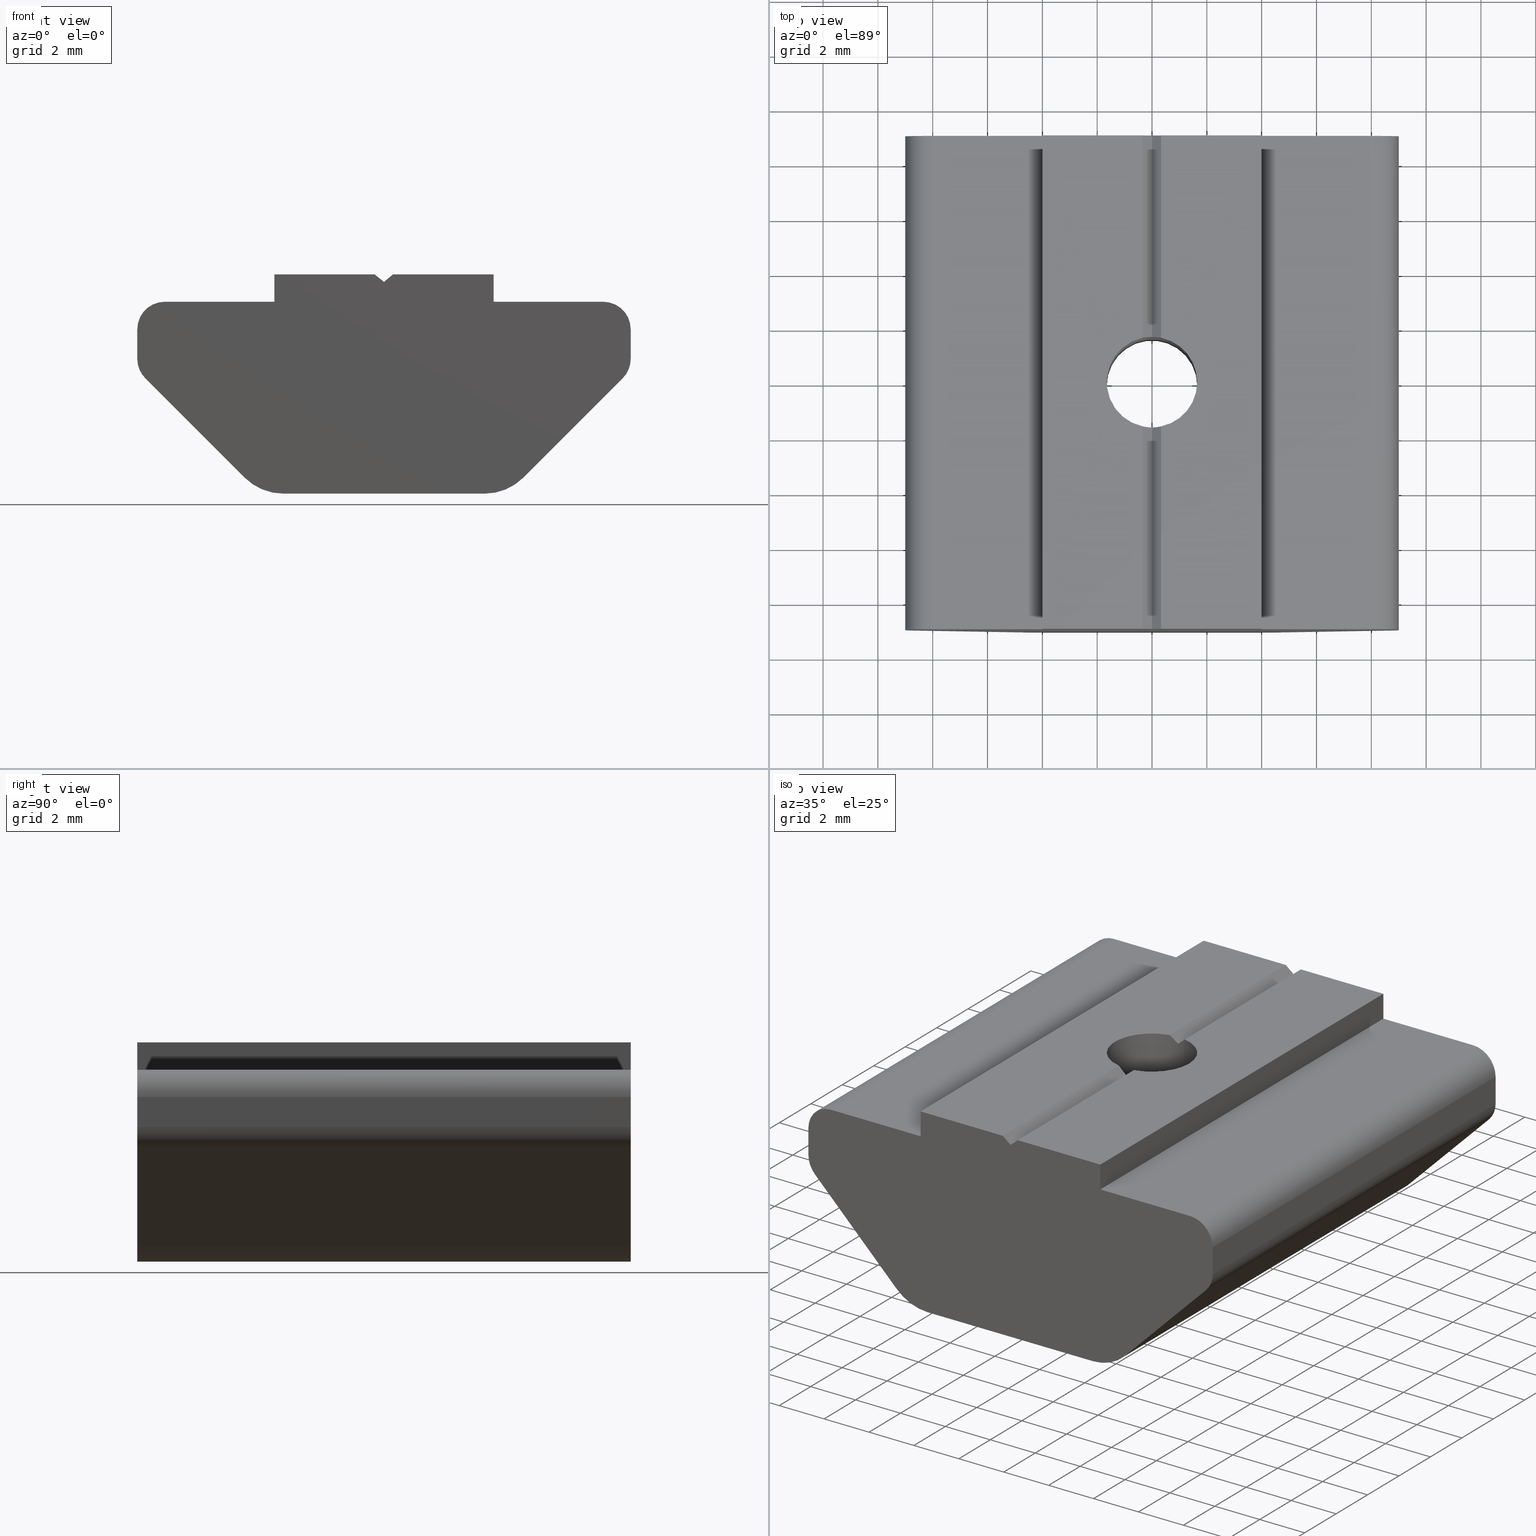
[diagram: canonical four-view strip — front | top / right | iso, engineering-drawing reading convention]
A machine part, canonical four-view strip (front | top / right | iso — engineering-drawing reading convention). The complete STEP part file that produces these views, byte-faithful:
ISO-10303-21;
HEADER;
/****************************************************************
 * Generated by software with PDE/Lib inside                    *
 * PDElib Version v4.4, created Mon 02/23/2004                  *
 * International Technegroup Inc. (www.iti-oh.com)              *
 ****************************************************************/
FILE_DESCRIPTION(('STEP AP203'),'2;1');
FILE_NAME('26.027.00.stp','2011-03-21T16:16:51',(''),(''),'2009.3.110','THINKDESIGN','');
FILE_SCHEMA(('CONFIG_CONTROL_DESIGN'));
ENDSEC;
DATA;
#2=CARTESIAN_POINT('',(-3.999999103984351,9.0,6.999998456000070));
#3=DIRECTION('',(0.0,0.0,1.0));
#4=DIRECTION('',(-1.0,0.0,0.0));
#5=AXIS2_PLACEMENT_3D('',#2,#3,#4);
#6=PLANE('',#5);
#7=CARTESIAN_POINT('',(-3.999999103984351,9.0,6.999998456000070));
#8=VERTEX_POINT('',#7);
#9=CARTESIAN_POINT('',(-7.999998220035479,9.0,6.999998455999957));
#10=VERTEX_POINT('',#9);
#11=CARTESIAN_POINT('',(-3.999999103984351,9.0,6.999998456000070));
#12=DIRECTION('',(-1.0,0.0,0.0));
#13=VECTOR('',#12,3.999999116051129);
#14=LINE('',#11,#13);
#15=EDGE_CURVE('',#8,#10,#14,.T.);
#16=ORIENTED_EDGE('',*,*,#15,.T.);
#17=CARTESIAN_POINT('',(-7.999998220035479,-9.0,6.999998455999958));
#18=VERTEX_POINT('',#17);
#19=CARTESIAN_POINT('',(-7.999998220035479,9.0,6.999998455999957));
#20=DIRECTION('',(0.0,-1.0,0.0));
#21=VECTOR('',#20,18.0);
#22=LINE('',#19,#21);
#23=EDGE_CURVE('',#10,#18,#22,.T.);
#24=ORIENTED_EDGE('',*,*,#23,.T.);
#25=CARTESIAN_POINT('',(-3.999999103984351,-9.0,6.999998456000072));
#26=VERTEX_POINT('',#25);
#27=CARTESIAN_POINT('',(-3.999999103984351,-9.0,6.999998456000072));
#28=DIRECTION('',(-1.0,0.0,0.0));
#29=VECTOR('',#28,3.999999116051129);
#30=LINE('',#27,#29);
#31=EDGE_CURVE('',#26,#18,#30,.T.);
#32=ORIENTED_EDGE('',*,*,#31,.F.);
#33=CARTESIAN_POINT('',(-3.999999103984351,9.0,6.999998456000070));
#34=DIRECTION('',(0.0,-1.0,0.0));
#35=VECTOR('',#34,18.0);
#36=LINE('',#33,#35);
#37=EDGE_CURVE('',#8,#26,#36,.T.);
#38=ORIENTED_EDGE('',*,*,#37,.F.);
#39=EDGE_LOOP('',(#16,#24,#32,#38));
#40=FACE_OUTER_BOUND('',#39,.T.);
#41=ADVANCED_FACE('',(#40),#6,.T.);
#42=CARTESIAN_POINT('',(-7.999998211933246,9.0,5.999998673948880));
#43=DIRECTION('',(0.0,-1.0,6.123234E-017));
#44=DIRECTION('',(1.0,0.0,0.0));
#45=AXIS2_PLACEMENT_3D('',#42,#43,#44);
#46=CYLINDRICAL_SURFACE('',#45,0.999999782051095);
#47=CARTESIAN_POINT('',(-8.999997993984323,9.0,5.999998677999996));
#48=VERTEX_POINT('',#47);
#49=CARTESIAN_POINT('',(-7.999998211933246,9.0,5.999998673948880));
#50=DIRECTION('',(0.0,-1.0,6.123234E-017));
#51=DIRECTION('',(1.0,0.0,0.0));
#52=AXIS2_PLACEMENT_3D('',#49,#50,#51);
#53=CIRCLE('',#52,0.999999782051095);
#54=EDGE_CURVE('',#10,#48,#53,.T.);
#55=ORIENTED_EDGE('',*,*,#54,.T.);
#56=CARTESIAN_POINT('',(-8.999997993984323,-9.0,5.999998677999998));
#57=VERTEX_POINT('',#56);
#58=CARTESIAN_POINT('',(-8.999997993984323,9.0,5.999998677999996));
#59=DIRECTION('',(0.0,-1.0,0.0));
#60=VECTOR('',#59,18.0);
#61=LINE('',#58,#60);
#62=EDGE_CURVE('',#48,#57,#61,.T.);
#63=ORIENTED_EDGE('',*,*,#62,.T.);
#64=CARTESIAN_POINT('',(-7.999998211933246,-9.0,5.999998673948881));
#65=DIRECTION('',(0.0,-1.0,6.123234E-017));
#66=DIRECTION('',(1.0,0.0,0.0));
#67=AXIS2_PLACEMENT_3D('',#64,#65,#66);
#68=CIRCLE('',#67,0.999999782051095);
#69=EDGE_CURVE('',#18,#57,#68,.T.);
#70=ORIENTED_EDGE('',*,*,#69,.F.);
#71=ORIENTED_EDGE('',*,*,#23,.F.);
#72=EDGE_LOOP('',(#55,#63,#70,#71));
#73=FACE_OUTER_BOUND('',#72,.T.);
#74=ADVANCED_FACE('',(#73),#46,.T.);
#75=CARTESIAN_POINT('',(-8.999997993984323,9.0,5.999998677999996));
#76=DIRECTION('',(-1.0,0.0,0.0));
#77=DIRECTION('',(0.0,0.0,-1.0));
#78=AXIS2_PLACEMENT_3D('',#75,#76,#77);
#79=PLANE('',#78);
#80=CARTESIAN_POINT('',(-8.999997993984351,9.0,4.914212479044635));
#81=VERTEX_POINT('',#80);
#82=CARTESIAN_POINT('',(-8.999997993984337,9.0,5.999998677999996));
#83=DIRECTION('',(0.0,0.0,-1.0));
#84=VECTOR('',#83,1.085786198955361);
#85=LINE('',#82,#84);
#86=EDGE_CURVE('',#48,#81,#85,.T.);
#87=ORIENTED_EDGE('',*,*,#86,.T.);
#88=CARTESIAN_POINT('',(-8.999997993984351,-9.0,4.914212479044637));
#89=VERTEX_POINT('',#88);
#90=CARTESIAN_POINT('',(-8.999997993984351,9.0,4.914212479044635));
#91=DIRECTION('',(0.0,-1.0,0.0));
#92=VECTOR('',#91,18.0);
#93=LINE('',#90,#92);
#94=EDGE_CURVE('',#81,#89,#93,.T.);
#95=ORIENTED_EDGE('',*,*,#94,.T.);
#96=CARTESIAN_POINT('',(-8.999997993984337,-9.0,5.999998677999998));
#97=DIRECTION('',(0.0,0.0,-1.0));
#98=VECTOR('',#97,1.085786198955361);
#99=LINE('',#96,#98);
#100=EDGE_CURVE('',#57,#89,#99,.T.);
#101=ORIENTED_EDGE('',*,*,#100,.F.);
#102=ORIENTED_EDGE('',*,*,#62,.F.);
#103=EDGE_LOOP('',(#87,#95,#101,#102));
#104=FACE_OUTER_BOUND('',#103,.T.);
#105=ADVANCED_FACE('',(#104),#79,.T.);
#106=CARTESIAN_POINT('',(-7.999998228993803,9.0,4.914212476028978));
#107=DIRECTION('',(0.0,-1.0,6.123234E-017));
#108=DIRECTION('',(1.0,0.0,0.0));
#109=AXIS2_PLACEMENT_3D('',#106,#107,#108);
#110=CYLINDRICAL_SURFACE('',#109,0.999999764990546);
#111=CARTESIAN_POINT('',(-8.707104839006661,9.0,4.207105856022280));
#112=VERTEX_POINT('',#111);
#113=CARTESIAN_POINT('',(-7.999998228993803,9.0,4.914212476028978));
#114=DIRECTION('',(0.0,-1.0,6.123234E-017));
#115=DIRECTION('',(1.0,0.0,0.0));
#116=AXIS2_PLACEMENT_3D('',#113,#114,#115);
#117=CIRCLE('',#116,0.999999764990546);
#118=EDGE_CURVE('',#81,#112,#117,.T.);
#119=ORIENTED_EDGE('',*,*,#118,.T.);
#120=CARTESIAN_POINT('',(-8.707104839006661,-9.0,4.207105856022282));
#121=VERTEX_POINT('',#120);
#122=CARTESIAN_POINT('',(-8.707104839006661,9.0,4.207105856022280));
#123=DIRECTION('',(0.0,-1.0,0.0));
#124=VECTOR('',#123,18.0);
#125=LINE('',#122,#124);
#126=EDGE_CURVE('',#112,#121,#125,.T.);
#127=ORIENTED_EDGE('',*,*,#126,.T.);
#128=CARTESIAN_POINT('',(-7.999998228993803,-9.0,4.914212476028980));
#129=DIRECTION('',(0.0,-1.0,6.123234E-017));
#130=DIRECTION('',(1.0,0.0,0.0));
#131=AXIS2_PLACEMENT_3D('',#128,#129,#130);
#132=CIRCLE('',#131,0.999999764990546);
#133=EDGE_CURVE('',#89,#121,#132,.T.);
#134=ORIENTED_EDGE('',*,*,#133,.F.);
#135=ORIENTED_EDGE('',*,*,#94,.F.);
#136=EDGE_LOOP('',(#119,#127,#134,#135));
#137=FACE_OUTER_BOUND('',#136,.T.);
#138=ADVANCED_FACE('',(#137),#110,.T.);
#139=CARTESIAN_POINT('',(-8.707104839006661,9.0,4.207105856022280));
#140=DIRECTION('',(-0.707106782162851,-4.329780E-017,-0.707106780210244));
#141=DIRECTION('',(0.707106780210244,-4.329780E-017,-0.707106782162851));
#142=AXIS2_PLACEMENT_3D('',#139,#140,#141);
#143=PLANE('',#142);
#144=CARTESIAN_POINT('',(-5.085785302939740,9.0,0.585786309955437));
#145=VERTEX_POINT('',#144);
#146=CARTESIAN_POINT('',(-8.707104839006661,9.0,4.207105856022281));
#147=DIRECTION('',(0.707106780210244,0.0,-0.707106782162851));
#148=VECTOR('',#147,5.121319208663497);
#149=LINE('',#146,#148);
#150=EDGE_CURVE('',#112,#145,#149,.T.);
#151=ORIENTED_EDGE('',*,*,#150,.T.);
#152=CARTESIAN_POINT('',(-5.085785302939740,-9.0,0.585786309955438));
#153=VERTEX_POINT('',#152);
#154=CARTESIAN_POINT('',(-5.085785302939740,9.0,0.585786309955437));
#155=DIRECTION('',(0.0,-1.0,0.0));
#156=VECTOR('',#155,18.0);
#157=LINE('',#154,#156);
#158=EDGE_CURVE('',#145,#153,#157,.T.);
#159=ORIENTED_EDGE('',*,*,#158,.T.);
#160=CARTESIAN_POINT('',(-8.707104839006661,-9.0,4.207105856022282));
#161=DIRECTION('',(0.707106780210244,0.0,-0.707106782162851));
#162=VECTOR('',#161,5.121319208663497);
#163=LINE('',#160,#162);
#164=EDGE_CURVE('',#121,#153,#163,.T.);
#165=ORIENTED_EDGE('',*,*,#164,.F.);
#166=ORIENTED_EDGE('',*,*,#126,.F.);
#167=EDGE_LOOP('',(#151,#159,#165,#166));
#168=FACE_OUTER_BOUND('',#167,.T.);
#169=ADVANCED_FACE('',(#168),#143,.T.);
#170=CARTESIAN_POINT('',(-3.671572062926458,9.0,1.999999529980755));
#171=DIRECTION('',(0.0,-1.0,6.123234E-017));
#172=DIRECTION('',(1.0,0.0,0.0));
#173=AXIS2_PLACEMENT_3D('',#170,#171,#172);
#174=CYLINDRICAL_SURFACE('',#173,1.999999529980764);
#175=CARTESIAN_POINT('',(-3.671572062926487,9.0,-5.510911E-016));
#176=VERTEX_POINT('',#175);
#177=CARTESIAN_POINT('',(-3.671572062926458,9.0,1.999999529980755));
#178=DIRECTION('',(0.0,-1.0,6.123234E-017));
#179=DIRECTION('',(1.0,0.0,0.0));
#180=AXIS2_PLACEMENT_3D('',#177,#178,#179);
#181=CIRCLE('',#180,1.999999529980764);
#182=EDGE_CURVE('',#145,#176,#181,.T.);
#183=ORIENTED_EDGE('',*,*,#182,.T.);
#184=CARTESIAN_POINT('',(-3.671572062926487,-9.0,5.510911E-016));
#185=VERTEX_POINT('',#184);
#186=CARTESIAN_POINT('',(-3.671572062926487,9.0,-5.510911E-016));
#187=DIRECTION('',(0.0,-1.0,0.0));
#188=VECTOR('',#187,18.0);
#189=LINE('',#186,#188);
#190=EDGE_CURVE('',#176,#185,#189,.T.);
#191=ORIENTED_EDGE('',*,*,#190,.T.);
#192=CARTESIAN_POINT('',(-3.671572062926458,-9.0,1.999999529980756));
#193=DIRECTION('',(0.0,-1.0,6.123234E-017));
#194=DIRECTION('',(1.0,0.0,0.0));
#195=AXIS2_PLACEMENT_3D('',#192,#193,#194);
#196=CIRCLE('',#195,1.999999529980764);
#197=EDGE_CURVE('',#153,#185,#196,.T.);
#198=ORIENTED_EDGE('',*,*,#197,.F.);
#199=ORIENTED_EDGE('',*,*,#158,.F.);
#200=EDGE_LOOP('',(#183,#191,#198,#199));
#201=FACE_OUTER_BOUND('',#200,.T.);
#202=ADVANCED_FACE('',(#201),#174,.T.);
#203=CARTESIAN_POINT('',(-3.671572062926487,9.0,-5.510911E-016));
#204=DIRECTION('',(0.0,0.0,-1.0));
#205=DIRECTION('',(1.0,0.0,0.0));
#206=AXIS2_PLACEMENT_3D('',#203,#204,#205);
#207=PLANE('',#206);
#208=CARTESIAN_POINT('',(3.671572062926487,9.0,-5.510911E-016));
#209=VERTEX_POINT('',#208);
#210=CARTESIAN_POINT('',(-3.671572062926472,9.0,-5.510911E-016));
#211=DIRECTION('',(1.0,0.0,0.0));
#212=VECTOR('',#211,7.343144125852959);
#213=LINE('',#210,#212);
#214=EDGE_CURVE('',#176,#209,#213,.T.);
#215=ORIENTED_EDGE('',*,*,#214,.T.);
#216=CARTESIAN_POINT('',(3.671572062926487,-9.0,5.510911E-016));
#217=VERTEX_POINT('',#216);
#218=CARTESIAN_POINT('',(3.671572062926487,9.0,-5.510911E-016));
#219=DIRECTION('',(0.0,-1.0,0.0));
#220=VECTOR('',#219,18.0);
#221=LINE('',#218,#220);
#222=EDGE_CURVE('',#209,#217,#221,.T.);
#223=ORIENTED_EDGE('',*,*,#222,.T.);
#224=CARTESIAN_POINT('',(-3.671572062926472,-9.0,5.510911E-016));
#225=DIRECTION('',(1.0,0.0,0.0));
#226=VECTOR('',#225,7.343144125852959);
#227=LINE('',#224,#226);
#228=EDGE_CURVE('',#185,#217,#227,.T.);
#229=ORIENTED_EDGE('',*,*,#228,.F.);
#230=ORIENTED_EDGE('',*,*,#190,.F.);
#231=EDGE_LOOP('',(#215,#223,#229,#230));
#232=FACE_OUTER_BOUND('',#231,.T.);
#233=CARTESIAN_POINT('',(-1.650000000000000,0.0,0.0));
#234=VERTEX_POINT('',#233);
#235=CARTESIAN_POINT('',(1.650000000000006,0.0,0.0));
#236=VERTEX_POINT('',#235);
#237=CARTESIAN_POINT('',(0.0,0.0,0.0));
#238=DIRECTION('',(0.0,-6.123234E-017,-1.0));
#239=DIRECTION('',(1.0,0.0,0.0));
#240=AXIS2_PLACEMENT_3D('',#237,#238,#239);
#241=CIRCLE('',#240,1.650000000000000);
#242=EDGE_CURVE('',#234,#236,#241,.T.);
#243=ORIENTED_EDGE('',*,*,#242,.F.);
#244=CARTESIAN_POINT('',(0.0,0.0,0.0));
#245=DIRECTION('',(0.0,-6.123234E-017,-1.0));
#246=DIRECTION('',(1.0,0.0,0.0));
#247=AXIS2_PLACEMENT_3D('',#244,#245,#246);
#248=CIRCLE('',#247,1.650000000000000);
#249=EDGE_CURVE('',#236,#234,#248,.T.);
#250=ORIENTED_EDGE('',*,*,#249,.F.);
#251=EDGE_LOOP('',(#243,#250));
#252=FACE_BOUND('',#251,.T.);
#253=ADVANCED_FACE('',(#232,#252),#207,.T.);
#254=CARTESIAN_POINT('',(3.671572068957801,9.0,1.999999529980755));
#255=DIRECTION('',(0.0,-1.0,6.123234E-017));
#256=DIRECTION('',(1.0,0.0,0.0));
#257=AXIS2_PLACEMENT_3D('',#254,#255,#256);
#258=CYLINDRICAL_SURFACE('',#257,1.999999529980788);
#259=CARTESIAN_POINT('',(5.085785308971083,9.0,0.585786309955437));
#260=VERTEX_POINT('',#259);
#261=CARTESIAN_POINT('',(3.671572068957801,9.0,1.999999529980755));
#262=DIRECTION('',(0.0,-1.0,6.123234E-017));
#263=DIRECTION('',(1.0,0.0,0.0));
#264=AXIS2_PLACEMENT_3D('',#261,#262,#263);
#265=CIRCLE('',#264,1.999999529980788);
#266=EDGE_CURVE('',#209,#260,#265,.T.);
#267=ORIENTED_EDGE('',*,*,#266,.T.);
#268=CARTESIAN_POINT('',(5.085785308971083,-9.0,0.585786309955438));
#269=VERTEX_POINT('',#268);
#270=CARTESIAN_POINT('',(5.085785308971083,9.0,0.585786309955437));
#271=DIRECTION('',(0.0,-1.0,0.0));
#272=VECTOR('',#271,18.0);
#273=LINE('',#270,#272);
#274=EDGE_CURVE('',#260,#269,#273,.T.);
#275=ORIENTED_EDGE('',*,*,#274,.T.);
#276=CARTESIAN_POINT('',(3.671572068957801,-9.0,1.999999529980756));
#277=DIRECTION('',(0.0,-1.0,6.123234E-017));
#278=DIRECTION('',(1.0,0.0,0.0));
#279=AXIS2_PLACEMENT_3D('',#276,#277,#278);
#280=CIRCLE('',#279,1.999999529980788);
#281=EDGE_CURVE('',#217,#269,#280,.T.);
#282=ORIENTED_EDGE('',*,*,#281,.F.);
#283=ORIENTED_EDGE('',*,*,#222,.F.);
#284=EDGE_LOOP('',(#267,#275,#282,#283));
#285=FACE_OUTER_BOUND('',#284,.T.);
#286=ADVANCED_FACE('',(#285),#258,.T.);
#287=CARTESIAN_POINT('',(5.085785308971083,9.0,0.585786309955437));
#288=DIRECTION('',(0.707106781186546,-4.329780E-017,-0.707106781186549));
#289=DIRECTION('',(0.707106781186549,4.329780E-017,0.707106781186546));
#290=AXIS2_PLACEMENT_3D('',#287,#288,#289);
#291=PLANE('',#290);
#292=CARTESIAN_POINT('',(8.707104855037954,9.0,4.207105856022280));
#293=VERTEX_POINT('',#292);
#294=CARTESIAN_POINT('',(5.085785308971097,9.0,0.585786309955437));
#295=DIRECTION('',(0.707106781186549,0.0,0.707106781186546));
#296=VECTOR('',#295,5.121319215734520);
#297=LINE('',#294,#296);
#298=EDGE_CURVE('',#260,#293,#297,.T.);
#299=ORIENTED_EDGE('',*,*,#298,.T.);
#300=CARTESIAN_POINT('',(8.707104855037954,-9.0,4.207105856022282));
#301=VERTEX_POINT('',#300);
#302=CARTESIAN_POINT('',(8.707104855037954,9.0,4.207105856022280));
#303=DIRECTION('',(0.0,-1.0,0.0));
#304=VECTOR('',#303,18.0);
#305=LINE('',#302,#304);
#306=EDGE_CURVE('',#293,#301,#305,.T.);
#307=ORIENTED_EDGE('',*,*,#306,.T.);
#308=CARTESIAN_POINT('',(5.085785308971097,-9.0,0.585786309955439));
#309=DIRECTION('',(0.707106781186549,0.0,0.707106781186546));
#310=VECTOR('',#309,5.121319215734520);
#311=LINE('',#308,#310);
#312=EDGE_CURVE('',#269,#301,#311,.T.);
#313=ORIENTED_EDGE('',*,*,#312,.F.);
#314=ORIENTED_EDGE('',*,*,#274,.F.);
#315=EDGE_LOOP('',(#299,#307,#313,#314));
#316=FACE_OUTER_BOUND('',#315,.T.);
#317=ADVANCED_FACE('',(#316),#291,.T.);
#318=CARTESIAN_POINT('',(7.999998245025154,9.0,4.914212476028978));
#319=DIRECTION('',(0.0,-1.0,6.123234E-017));
#320=DIRECTION('',(1.0,0.0,0.0));
#321=AXIS2_PLACEMENT_3D('',#318,#319,#320);
#322=CYLINDRICAL_SURFACE('',#321,0.999999764990531);
#323=CARTESIAN_POINT('',(8.999998010015673,9.0,4.914212476028978));
#324=VERTEX_POINT('',#323);
#325=CARTESIAN_POINT('',(7.999998245025154,9.0,4.914212476028978));
#326=DIRECTION('',(0.0,-1.0,6.123234E-017));
#327=DIRECTION('',(1.0,0.0,0.0));
#328=AXIS2_PLACEMENT_3D('',#325,#326,#327);
#329=CIRCLE('',#328,0.999999764990531);
#330=EDGE_CURVE('',#293,#324,#329,.T.);
#331=ORIENTED_EDGE('',*,*,#330,.T.);
#332=CARTESIAN_POINT('',(8.999998010015673,-9.0,4.914212476028980));
#333=VERTEX_POINT('',#332);
#334=CARTESIAN_POINT('',(8.999998010015673,9.0,4.914212476028978));
#335=DIRECTION('',(0.0,-1.0,0.0));
#336=VECTOR('',#335,18.0);
#337=LINE('',#334,#336);
#338=EDGE_CURVE('',#324,#333,#337,.T.);
#339=ORIENTED_EDGE('',*,*,#338,.T.);
#340=CARTESIAN_POINT('',(7.999998245025154,-9.0,4.914212476028980));
#341=DIRECTION('',(0.0,-1.0,6.123234E-017));
#342=DIRECTION('',(1.0,0.0,0.0));
#343=AXIS2_PLACEMENT_3D('',#340,#341,#342);
#344=CIRCLE('',#343,0.999999764990531);
#345=EDGE_CURVE('',#301,#333,#344,.T.);
#346=ORIENTED_EDGE('',*,*,#345,.F.);
#347=ORIENTED_EDGE('',*,*,#306,.F.);
#348=EDGE_LOOP('',(#331,#339,#346,#347));
#349=FACE_OUTER_BOUND('',#348,.T.);
#350=ADVANCED_FACE('',(#349),#322,.T.);
#351=CARTESIAN_POINT('',(8.999998010015673,9.0,4.914212476028978));
#352=DIRECTION('',(1.0,0.0,0.0));
#353=DIRECTION('',(0.0,0.0,1.0));
#354=AXIS2_PLACEMENT_3D('',#351,#352,#353);
#355=PLANE('',#354);
#356=CARTESIAN_POINT('',(8.999998010015673,9.0,5.999998677999996));
#357=VERTEX_POINT('',#356);
#358=CARTESIAN_POINT('',(8.999998010015673,9.0,4.914212476028978));
#359=DIRECTION('',(0.0,0.0,1.0));
#360=VECTOR('',#359,1.085786201971018);
#361=LINE('',#358,#360);
#362=EDGE_CURVE('',#324,#357,#361,.T.);
#363=ORIENTED_EDGE('',*,*,#362,.T.);
#364=CARTESIAN_POINT('',(8.999998010015673,-9.0,5.999998677999998));
#365=VERTEX_POINT('',#364);
#366=CARTESIAN_POINT('',(8.999998010015673,9.0,5.999998677999996));
#367=DIRECTION('',(0.0,-1.0,0.0));
#368=VECTOR('',#367,18.0);
#369=LINE('',#366,#368);
#370=EDGE_CURVE('',#357,#365,#369,.T.);
#371=ORIENTED_EDGE('',*,*,#370,.T.);
#372=CARTESIAN_POINT('',(8.999998010015673,-9.0,4.914212476028980));
#373=DIRECTION('',(0.0,0.0,1.0));
#374=VECTOR('',#373,1.085786201971018);
#375=LINE('',#372,#374);
#376=EDGE_CURVE('',#333,#365,#375,.T.);
#377=ORIENTED_EDGE('',*,*,#376,.F.);
#378=ORIENTED_EDGE('',*,*,#338,.F.);
#379=EDGE_LOOP('',(#363,#371,#377,#378));
#380=FACE_OUTER_BOUND('',#379,.T.);
#381=ADVANCED_FACE('',(#380),#355,.T.);
#382=CARTESIAN_POINT('',(7.999998227964539,9.0,5.999998673948880));
#383=DIRECTION('',(0.0,-1.0,6.123234E-017));
#384=DIRECTION('',(1.0,0.0,0.0));
#385=AXIS2_PLACEMENT_3D('',#382,#383,#384);
#386=CYLINDRICAL_SURFACE('',#385,0.999999782051127);
#387=CARTESIAN_POINT('',(7.999998227964511,9.0,6.999998455999957));
#388=VERTEX_POINT('',#387);
#389=CARTESIAN_POINT('',(7.999998227964539,9.0,5.999998673948880));
#390=DIRECTION('',(0.0,-1.0,6.123234E-017));
#391=DIRECTION('',(1.0,0.0,0.0));
#392=AXIS2_PLACEMENT_3D('',#389,#390,#391);
#393=CIRCLE('',#392,0.999999782051127);
#394=EDGE_CURVE('',#357,#388,#393,.T.);
#395=ORIENTED_EDGE('',*,*,#394,.T.);
#396=CARTESIAN_POINT('',(7.999998227964511,-9.0,6.999998455999958));
#397=VERTEX_POINT('',#396);
#398=CARTESIAN_POINT('',(7.999998227964511,9.0,6.999998455999957));
#399=DIRECTION('',(0.0,-1.0,0.0));
#400=VECTOR('',#399,18.0);
#401=LINE('',#398,#400);
#402=EDGE_CURVE('',#388,#397,#401,.T.);
#403=ORIENTED_EDGE('',*,*,#402,.T.);
#404=CARTESIAN_POINT('',(7.999998227964539,-9.0,5.999998673948881));
#405=DIRECTION('',(0.0,-1.0,6.123234E-017));
#406=DIRECTION('',(1.0,0.0,0.0));
#407=AXIS2_PLACEMENT_3D('',#404,#405,#406);
#408=CIRCLE('',#407,0.999999782051127);
#409=EDGE_CURVE('',#365,#397,#408,.T.);
#410=ORIENTED_EDGE('',*,*,#409,.F.);
#411=ORIENTED_EDGE('',*,*,#370,.F.);
#412=EDGE_LOOP('',(#395,#403,#410,#411));
#413=FACE_OUTER_BOUND('',#412,.T.);
#414=ADVANCED_FACE('',(#413),#386,.T.);
#415=CARTESIAN_POINT('',(7.999998227964511,9.0,6.999998455999957));
#416=DIRECTION('',(0.0,0.0,1.0));
#417=DIRECTION('',(-1.0,0.0,0.0));
#418=AXIS2_PLACEMENT_3D('',#415,#416,#417);
#419=PLANE('',#418);
#420=CARTESIAN_POINT('',(3.999999120015673,9.0,6.999998455999957));
#421=VERTEX_POINT('',#420);
#422=CARTESIAN_POINT('',(7.999998227964539,9.0,6.999998455999957));
#423=DIRECTION('',(-1.0,0.0,0.0));
#424=VECTOR('',#423,3.999999107948867);
#425=LINE('',#422,#424);
#426=EDGE_CURVE('',#388,#421,#425,.T.);
#427=ORIENTED_EDGE('',*,*,#426,.T.);
#428=CARTESIAN_POINT('',(3.999999120015673,-9.0,6.999998455999958));
#429=VERTEX_POINT('',#428);
#430=CARTESIAN_POINT('',(3.999999120015673,9.0,6.999998455999957));
#431=DIRECTION('',(0.0,-1.0,0.0));
#432=VECTOR('',#431,18.0);
#433=LINE('',#430,#432);
#434=EDGE_CURVE('',#421,#429,#433,.T.);
#435=ORIENTED_EDGE('',*,*,#434,.T.);
#436=CARTESIAN_POINT('',(7.999998227964539,-9.0,6.999998455999958));
#437=DIRECTION('',(-1.0,0.0,0.0));
#438=VECTOR('',#437,3.999999107948867);
#439=LINE('',#436,#438);
#440=EDGE_CURVE('',#397,#429,#439,.T.);
#441=ORIENTED_EDGE('',*,*,#440,.F.);
#442=ORIENTED_EDGE('',*,*,#402,.F.);
#443=EDGE_LOOP('',(#427,#435,#441,#442));
#444=FACE_OUTER_BOUND('',#443,.T.);
#445=ADVANCED_FACE('',(#444),#419,.T.);
#446=CARTESIAN_POINT('',(3.999999120015673,9.0,6.999998455999957));
#447=DIRECTION('',(1.0,0.0,0.0));
#448=DIRECTION('',(0.0,0.0,1.0));
#449=AXIS2_PLACEMENT_3D('',#446,#447,#448);
#450=PLANE('',#449);
#451=CARTESIAN_POINT('',(3.999999120015673,9.0,7.999998234000031));
#452=VERTEX_POINT('',#451);
#453=CARTESIAN_POINT('',(3.999999120015673,9.0,6.999998455999957));
#454=DIRECTION('',(0.0,0.0,1.0));
#455=VECTOR('',#454,0.999999778000074);
#456=LINE('',#453,#455);
#457=EDGE_CURVE('',#421,#452,#456,.T.);
#458=ORIENTED_EDGE('',*,*,#457,.T.);
#459=CARTESIAN_POINT('',(3.999999120015673,-9.0,7.999998234000032));
#460=VERTEX_POINT('',#459);
#461=CARTESIAN_POINT('',(3.999999120015673,9.0,7.999998234000031));
#462=DIRECTION('',(0.0,-1.0,0.0));
#463=VECTOR('',#462,18.0);
#464=LINE('',#461,#463);
#465=EDGE_CURVE('',#452,#460,#464,.T.);
#466=ORIENTED_EDGE('',*,*,#465,.T.);
#467=CARTESIAN_POINT('',(3.999999120015673,-9.0,6.999998455999958));
#468=DIRECTION('',(0.0,0.0,1.0));
#469=VECTOR('',#468,0.999999778000074);
#470=LINE('',#467,#469);
#471=EDGE_CURVE('',#429,#460,#470,.T.);
#472=ORIENTED_EDGE('',*,*,#471,.F.);
#473=ORIENTED_EDGE('',*,*,#434,.F.);
#474=EDGE_LOOP('',(#458,#466,#472,#473));
#475=FACE_OUTER_BOUND('',#474,.T.);
#476=ADVANCED_FACE('',(#475),#450,.T.);
#477=CARTESIAN_POINT('',(3.999999120015673,9.0,7.999998234000031));
#478=DIRECTION('',(-2.723567E-009,6.123234E-017,1.0));
#479=DIRECTION('',(-1.0,-1.667704E-025,-2.723567E-009));
#480=AXIS2_PLACEMENT_3D('',#477,#478,#479);
#481=PLANE('',#480);
#482=CARTESIAN_POINT('',(0.328340585124039,9.0,7.999998224000023));
#483=VERTEX_POINT('',#482);
#484=CARTESIAN_POINT('',(3.999999120015659,9.0,7.999998234000031));
#485=DIRECTION('',(-1.0,0.0,-2.723567E-009));
#486=VECTOR('',#485,3.671658534891620);
#487=LINE('',#484,#486);
#488=EDGE_CURVE('',#452,#483,#487,.T.);
#489=ORIENTED_EDGE('',*,*,#488,.T.);
#490=CARTESIAN_POINT('',(0.328340585124039,1.617001069931739,7.999998224000024));
#491=VERTEX_POINT('',#490);
#492=CARTESIAN_POINT('',(0.328340585124039,9.0,7.999998224000023));
#493=DIRECTION('',(0.0,-1.0,0.0));
#494=VECTOR('',#493,7.382998930068260);
#495=LINE('',#492,#494);
#496=EDGE_CURVE('',#483,#491,#495,.T.);
#497=ORIENTED_EDGE('',*,*,#496,.T.);
#498=CARTESIAN_POINT('',(1.650000000000006,4.898586E-016,7.999998227599690));
#499=VERTEX_POINT('',#498);
#500=CARTESIAN_POINT('',(0.0,4.898586E-016,7.999998223105763));
#501=DIRECTION('',(0.0,-6.123234E-017,-1.0));
#502=DIRECTION('',(1.0,0.0,0.0));
#503=AXIS2_PLACEMENT_3D('',#500,#501,#502);
#504=CIRCLE('',#503,1.650000000000000);
#505=EDGE_CURVE('',#491,#499,#504,.T.);
#506=ORIENTED_EDGE('',*,*,#505,.T.);
#507=CARTESIAN_POINT('',(0.328340585124039,-1.617001069931745,7.999998224000024));
#508=VERTEX_POINT('',#507);
#509=CARTESIAN_POINT('',(0.0,4.898586E-016,7.999998223105763));
#510=DIRECTION('',(0.0,-6.123234E-017,-1.0));
#511=DIRECTION('',(1.0,0.0,0.0));
#512=AXIS2_PLACEMENT_3D('',#509,#510,#511);
#513=CIRCLE('',#512,1.650000000000000);
#514=EDGE_CURVE('',#499,#508,#513,.T.);
#515=ORIENTED_EDGE('',*,*,#514,.T.);
#516=CARTESIAN_POINT('',(0.328340585124039,-9.0,7.999998224000025));
#517=VERTEX_POINT('',#516);
#518=CARTESIAN_POINT('',(0.328340585124039,-1.617001069931744,7.999998224000024));
#519=DIRECTION('',(0.0,-1.0,0.0));
#520=VECTOR('',#519,7.382998930068256);
#521=LINE('',#518,#520);
#522=EDGE_CURVE('',#508,#517,#521,.T.);
#523=ORIENTED_EDGE('',*,*,#522,.T.);
#524=CARTESIAN_POINT('',(3.999999120015659,-9.0,7.999998234000032));
#525=DIRECTION('',(-1.0,0.0,-2.723567E-009));
#526=VECTOR('',#525,3.671658534891620);
#527=LINE('',#524,#526);
#528=EDGE_CURVE('',#460,#517,#527,.T.);
#529=ORIENTED_EDGE('',*,*,#528,.F.);
#530=ORIENTED_EDGE('',*,*,#465,.F.);
#531=EDGE_LOOP('',(#489,#497,#506,#515,#523,#529,#530));
#532=FACE_OUTER_BOUND('',#531,.T.);
#533=ADVANCED_FACE('',(#532),#481,.T.);
#534=CARTESIAN_POINT('',(0.328340585124039,9.0,7.999998224000023));
#535=DIRECTION('',(-0.641072358860515,4.699462E-017,0.767480443206871));
#536=DIRECTION('',(-0.767480443206871,-3.925436E-017,-0.641072358860515));
#537=AXIS2_PLACEMENT_3D('',#534,#535,#536);
#538=PLANE('',#537);
#539=CARTESIAN_POINT('',(8.015661E-009,9.0,7.725737074885955));
#540=VERTEX_POINT('',#539);
#541=CARTESIAN_POINT('',(0.328340585124039,9.0,7.999998224000023));
#542=DIRECTION('',(-0.767480443206871,0.0,-0.641072358860515));
#543=VECTOR('',#542,0.427816213448289);
#544=LINE('',#541,#543);
#545=EDGE_CURVE('',#483,#540,#544,.T.);
#546=ORIENTED_EDGE('',*,*,#545,.T.);
#547=CARTESIAN_POINT('',(8.015661E-009,1.649999999999999,7.725737074885956));
#548=VERTEX_POINT('',#547);
#549=CARTESIAN_POINT('',(8.015661E-009,9.0,7.725737074885955));
#550=DIRECTION('',(0.0,-1.0,0.0));
#551=VECTOR('',#550,7.350000000000003);
#552=LINE('',#549,#551);
#553=EDGE_CURVE('',#540,#548,#552,.T.);
#554=ORIENTED_EDGE('',*,*,#553,.T.);
#555=CARTESIAN_POINT('',(0.0,4.730650E-016,7.725737068190712));
#556=DIRECTION('',(0.641072358860515,-4.699462E-017,-0.767480443206871));
#557=DIRECTION('',(0.767480443206871,3.925436E-017,0.641072358860515));
#558=AXIS2_PLACEMENT_3D('',#555,#556,#557);
#559=ELLIPSE('',#558,2.149891915298289,1.650000000000000);
#560=EDGE_CURVE('',#548,#491,#559,.T.);
#561=ORIENTED_EDGE('',*,*,#560,.T.);
#562=ORIENTED_EDGE('',*,*,#496,.F.);
#563=EDGE_LOOP('',(#546,#554,#561,#562));
#564=FACE_OUTER_BOUND('',#563,.T.);
#565=ADVANCED_FACE('',(#564),#538,.T.);
#566=CARTESIAN_POINT('',(0.328340585124039,9.0,7.999998224000023));
#567=DIRECTION('',(-0.641072358860515,4.699462E-017,0.767480443206871));
#568=DIRECTION('',(-0.767480443206871,-3.925436E-017,-0.641072358860515));
#569=AXIS2_PLACEMENT_3D('',#566,#567,#568);
#570=PLANE('',#569);
#571=ORIENTED_EDGE('',*,*,#522,.F.);
#572=CARTESIAN_POINT('',(8.015661E-009,-1.650000000000005,7.725737074885956));
#573=VERTEX_POINT('',#572);
#574=CARTESIAN_POINT('',(0.0,4.730650E-016,7.725737068190712));
#575=DIRECTION('',(0.641072358860515,-4.699462E-017,-0.767480443206871));
#576=DIRECTION('',(0.767480443206871,3.925436E-017,0.641072358860515));
#577=AXIS2_PLACEMENT_3D('',#574,#575,#576);
#578=ELLIPSE('',#577,2.149891915298289,1.650000000000000);
#579=EDGE_CURVE('',#508,#573,#578,.T.);
#580=ORIENTED_EDGE('',*,*,#579,.T.);
#581=CARTESIAN_POINT('',(8.015661E-009,-9.0,7.725737074885957));
#582=VERTEX_POINT('',#581);
#583=CARTESIAN_POINT('',(8.015661E-009,-1.650000000000000,7.725737074885956));
#584=DIRECTION('',(0.0,-1.0,0.0));
#585=VECTOR('',#584,7.350000000000000);
#586=LINE('',#583,#585);
#587=EDGE_CURVE('',#573,#582,#586,.T.);
#588=ORIENTED_EDGE('',*,*,#587,.T.);
#589=CARTESIAN_POINT('',(0.328340585124039,-9.0,7.999998224000025));
#590=DIRECTION('',(-0.767480443206871,0.0,-0.641072358860515));
#591=VECTOR('',#590,0.427816213448289);
#592=LINE('',#589,#591);
#593=EDGE_CURVE('',#517,#582,#592,.T.);
#594=ORIENTED_EDGE('',*,*,#593,.F.);
#595=EDGE_LOOP('',(#571,#580,#588,#594));
#596=FACE_OUTER_BOUND('',#595,.T.);
#597=ADVANCED_FACE('',(#596),#570,.T.);
#598=CARTESIAN_POINT('',(8.015661E-009,9.0,7.725737074885955));
#599=DIRECTION('',(0.624184046708014,4.783944E-017,0.781277336056287));
#600=DIRECTION('',(-0.781277336056287,3.822025E-017,0.624184046708014));
#601=AXIS2_PLACEMENT_3D('',#598,#599,#600);
#602=PLANE('',#601);
#603=CARTESIAN_POINT('',(-0.343286605774694,9.0,7.999998234000031));
#604=VERTEX_POINT('',#603);
#605=CARTESIAN_POINT('',(8.015661E-009,9.0,7.725737074885955));
#606=DIRECTION('',(-0.781277336056287,0.0,0.624184046708014));
#607=VECTOR('',#606,0.439391491276566);
#608=LINE('',#605,#607);
#609=EDGE_CURVE('',#540,#604,#608,.T.);
#610=ORIENTED_EDGE('',*,*,#609,.T.);
#611=CARTESIAN_POINT('',(-0.343286605774694,1.613894143460371,7.999998234000032));
#612=VERTEX_POINT('',#611);
#613=CARTESIAN_POINT('',(-0.343286605774694,9.0,7.999998234000031));
#614=DIRECTION('',(0.0,-1.0,0.0));
#615=VECTOR('',#614,7.386105856539631);
#616=LINE('',#613,#615);
#617=EDGE_CURVE('',#604,#612,#616,.T.);
#618=ORIENTED_EDGE('',*,*,#617,.T.);
#619=CARTESIAN_POINT('',(0.0,4.730650E-016,7.725737081289935));
#620=DIRECTION('',(-0.624184046708014,-4.783944E-017,-0.781277336056287));
#621=DIRECTION('',(-0.781277336056287,3.822025E-017,0.624184046708014));
#622=AXIS2_PLACEMENT_3D('',#619,#620,#621);
#623=ELLIPSE('',#622,2.111926103384530,1.650000000000000);
#624=EDGE_CURVE('',#612,#548,#623,.T.);
#625=ORIENTED_EDGE('',*,*,#624,.T.);
#626=ORIENTED_EDGE('',*,*,#553,.F.);
#627=EDGE_LOOP('',(#610,#618,#625,#626));
#628=FACE_OUTER_BOUND('',#627,.T.);
#629=ADVANCED_FACE('',(#628),#602,.T.);
#630=CARTESIAN_POINT('',(8.015661E-009,9.0,7.725737074885955));
#631=DIRECTION('',(0.624184046708014,4.783944E-017,0.781277336056287));
#632=DIRECTION('',(-0.781277336056287,3.822025E-017,0.624184046708014));
#633=AXIS2_PLACEMENT_3D('',#630,#631,#632);
#634=PLANE('',#633);
#635=ORIENTED_EDGE('',*,*,#587,.F.);
#636=CARTESIAN_POINT('',(-0.343286605774694,-1.613894143460370,7.999998234000032));
#637=VERTEX_POINT('',#636);
#638=CARTESIAN_POINT('',(0.0,4.730650E-016,7.725737081289935));
#639=DIRECTION('',(-0.624184046708014,-4.783944E-017,-0.781277336056287));
#640=DIRECTION('',(-0.781277336056287,3.822025E-017,0.624184046708014));
#641=AXIS2_PLACEMENT_3D('',#638,#639,#640);
#642=ELLIPSE('',#641,2.111926103384530,1.650000000000000);
#643=EDGE_CURVE('',#573,#637,#642,.T.);
#644=ORIENTED_EDGE('',*,*,#643,.T.);
#645=CARTESIAN_POINT('',(-0.343286605774694,-9.0,7.999998234000032));
#646=VERTEX_POINT('',#645);
#647=CARTESIAN_POINT('',(-0.343286605774694,-1.613894143460373,7.999998234000032));
#648=DIRECTION('',(0.0,-1.0,0.0));
#649=VECTOR('',#648,7.386105856539627);
#650=LINE('',#647,#649);
#651=EDGE_CURVE('',#637,#646,#650,.T.);
#652=ORIENTED_EDGE('',*,*,#651,.T.);
#653=CARTESIAN_POINT('',(8.015661E-009,-9.0,7.725737074885957));
#654=DIRECTION('',(-0.781277336056287,0.0,0.624184046708014));
#655=VECTOR('',#654,0.439391491276566);
#656=LINE('',#653,#655);
#657=EDGE_CURVE('',#582,#646,#656,.T.);
#658=ORIENTED_EDGE('',*,*,#657,.F.);
#659=EDGE_LOOP('',(#635,#644,#652,#658));
#660=FACE_OUTER_BOUND('',#659,.T.);
#661=ADVANCED_FACE('',(#660),#634,.T.);
#662=CARTESIAN_POINT('',(-0.343286605774694,9.0,7.999998234000031));
#663=DIRECTION('',(0.0,0.0,1.0));
#664=DIRECTION('',(-1.0,0.0,0.0));
#665=AXIS2_PLACEMENT_3D('',#662,#663,#664);
#666=PLANE('',#665);
#667=CARTESIAN_POINT('',(-3.999999103984351,9.0,7.999998234000031));
#668=VERTEX_POINT('',#667);
#669=CARTESIAN_POINT('',(-0.343286605774694,9.0,7.999998234000031));
#670=DIRECTION('',(-1.0,0.0,0.0));
#671=VECTOR('',#670,3.656712498209657);
#672=LINE('',#669,#671);
#673=EDGE_CURVE('',#604,#668,#672,.T.);
#674=ORIENTED_EDGE('',*,*,#673,.T.);
#675=CARTESIAN_POINT('',(-3.999999103984351,-9.0,7.999998234000032));
#676=VERTEX_POINT('',#675);
#677=CARTESIAN_POINT('',(-3.999999103984351,9.0,7.999998234000031));
#678=DIRECTION('',(0.0,-1.0,0.0));
#679=VECTOR('',#678,18.0);
#680=LINE('',#677,#679);
#681=EDGE_CURVE('',#668,#676,#680,.T.);
#682=ORIENTED_EDGE('',*,*,#681,.T.);
#683=CARTESIAN_POINT('',(-0.343286605774694,-9.0,7.999998234000032));
#684=DIRECTION('',(-1.0,0.0,0.0));
#685=VECTOR('',#684,3.656712498209657);
#686=LINE('',#683,#685);
#687=EDGE_CURVE('',#646,#676,#686,.T.);
#688=ORIENTED_EDGE('',*,*,#687,.F.);
#689=ORIENTED_EDGE('',*,*,#651,.F.);
#690=CARTESIAN_POINT('',(0.0,4.898586E-016,7.999998234000032));
#691=DIRECTION('',(0.0,-6.123234E-017,-1.0));
#692=DIRECTION('',(1.0,0.0,0.0));
#693=AXIS2_PLACEMENT_3D('',#690,#691,#692);
#694=CIRCLE('',#693,1.650000000000000);
#695=EDGE_CURVE('',#637,#612,#694,.T.);
#696=ORIENTED_EDGE('',*,*,#695,.T.);
#697=ORIENTED_EDGE('',*,*,#617,.F.);
#698=EDGE_LOOP('',(#674,#682,#688,#689,#696,#697));
#699=FACE_OUTER_BOUND('',#698,.T.);
#700=ADVANCED_FACE('',(#699),#666,.T.);
#701=CARTESIAN_POINT('',(-3.999999103984351,9.0,7.999998234000031));
#702=DIRECTION('',(-1.0,0.0,0.0));
#703=DIRECTION('',(0.0,0.0,-1.0));
#704=AXIS2_PLACEMENT_3D('',#701,#702,#703);
#705=PLANE('',#704);
#706=CARTESIAN_POINT('',(-3.999999103984351,9.0,7.999998234000031));
#707=DIRECTION('',(0.0,0.0,-1.0));
#708=VECTOR('',#707,0.999999778000074);
#709=LINE('',#706,#708);
#710=EDGE_CURVE('',#668,#8,#709,.T.);
#711=ORIENTED_EDGE('',*,*,#710,.T.);
#712=ORIENTED_EDGE('',*,*,#37,.T.);
#713=CARTESIAN_POINT('',(-3.999999103984351,-9.0,7.999998234000032));
#714=DIRECTION('',(0.0,0.0,-1.0));
#715=VECTOR('',#714,0.999999778000074);
#716=LINE('',#713,#715);
#717=EDGE_CURVE('',#676,#26,#716,.T.);
#718=ORIENTED_EDGE('',*,*,#717,.F.);
#719=ORIENTED_EDGE('',*,*,#681,.F.);
#720=EDGE_LOOP('',(#711,#712,#718,#719));
#721=FACE_OUTER_BOUND('',#720,.T.);
#722=ADVANCED_FACE('',(#721),#705,.T.);
#723=CARTESIAN_POINT('',(-10.800117596908905,9.0,-0.800119825907701));
#724=DIRECTION('',(0.0,-1.0,0.0));
#725=DIRECTION('',(1.0,0.0,0.0));
#726=AXIS2_PLACEMENT_3D('',#723,#724,#725);
#727=PLANE('',#726);
#728=ORIENTED_EDGE('',*,*,#710,.F.);
#729=ORIENTED_EDGE('',*,*,#673,.F.);
#730=ORIENTED_EDGE('',*,*,#609,.F.);
#731=ORIENTED_EDGE('',*,*,#545,.F.);
#732=ORIENTED_EDGE('',*,*,#488,.F.);
#733=ORIENTED_EDGE('',*,*,#457,.F.);
#734=ORIENTED_EDGE('',*,*,#426,.F.);
#735=ORIENTED_EDGE('',*,*,#394,.F.);
#736=ORIENTED_EDGE('',*,*,#362,.F.);
#737=ORIENTED_EDGE('',*,*,#330,.F.);
#738=ORIENTED_EDGE('',*,*,#298,.F.);
#739=ORIENTED_EDGE('',*,*,#266,.F.);
#740=ORIENTED_EDGE('',*,*,#214,.F.);
#741=ORIENTED_EDGE('',*,*,#182,.F.);
#742=ORIENTED_EDGE('',*,*,#150,.F.);
#743=ORIENTED_EDGE('',*,*,#118,.F.);
#744=ORIENTED_EDGE('',*,*,#86,.F.);
#745=ORIENTED_EDGE('',*,*,#54,.F.);
#746=ORIENTED_EDGE('',*,*,#15,.F.);
#747=EDGE_LOOP('',(#728,#729,#730,#731,#732,#733,#734,#735,#736,#737,#738,#739,#740,#741,#742,#743,#744,#745,#746));
#748=FACE_OUTER_BOUND('',#747,.T.);
#749=ADVANCED_FACE('',(#748),#727,.F.);
#750=CARTESIAN_POINT('',(-10.800117596908905,-9.0,-0.800119825907699));
#751=DIRECTION('',(0.0,-1.0,0.0));
#752=DIRECTION('',(1.0,0.0,0.0));
#753=AXIS2_PLACEMENT_3D('',#750,#751,#752);
#754=PLANE('',#753);
#755=ORIENTED_EDGE('',*,*,#31,.T.);
#756=ORIENTED_EDGE('',*,*,#69,.T.);
#757=ORIENTED_EDGE('',*,*,#100,.T.);
#758=ORIENTED_EDGE('',*,*,#133,.T.);
#759=ORIENTED_EDGE('',*,*,#164,.T.);
#760=ORIENTED_EDGE('',*,*,#197,.T.);
#761=ORIENTED_EDGE('',*,*,#228,.T.);
#762=ORIENTED_EDGE('',*,*,#281,.T.);
#763=ORIENTED_EDGE('',*,*,#312,.T.);
#764=ORIENTED_EDGE('',*,*,#345,.T.);
#765=ORIENTED_EDGE('',*,*,#376,.T.);
#766=ORIENTED_EDGE('',*,*,#409,.T.);
#767=ORIENTED_EDGE('',*,*,#440,.T.);
#768=ORIENTED_EDGE('',*,*,#471,.T.);
#769=ORIENTED_EDGE('',*,*,#528,.T.);
#770=ORIENTED_EDGE('',*,*,#593,.T.);
#771=ORIENTED_EDGE('',*,*,#657,.T.);
#772=ORIENTED_EDGE('',*,*,#687,.T.);
#773=ORIENTED_EDGE('',*,*,#717,.T.);
#774=EDGE_LOOP('',(#755,#756,#757,#758,#759,#760,#761,#762,#763,#764,#765,#766,#767,#768,#769,#770,#771,#772,#773));
#775=FACE_OUTER_BOUND('',#774,.T.);
#776=ADVANCED_FACE('',(#775),#754,.T.);
#777=CARTESIAN_POINT('',(0.0,0.0,0.0));
#778=DIRECTION('',(0.0,-6.123234E-017,-1.0));
#779=DIRECTION('',(1.0,0.0,0.0));
#780=AXIS2_PLACEMENT_3D('',#777,#778,#779);
#781=CYLINDRICAL_SURFACE('',#780,1.650000000000000);
#782=CARTESIAN_POINT('',(1.650000000000006,0.0,0.0));
#783=DIRECTION('',(0.0,0.0,1.0));
#784=VECTOR('',#783,7.999998227599690);
#785=LINE('',#782,#784);
#786=EDGE_CURVE('',#236,#499,#785,.T.);
#787=ORIENTED_EDGE('',*,*,#786,.T.);
#788=ORIENTED_EDGE('',*,*,#505,.F.);
#789=ORIENTED_EDGE('',*,*,#560,.F.);
#790=ORIENTED_EDGE('',*,*,#624,.F.);
#791=ORIENTED_EDGE('',*,*,#695,.F.);
#792=ORIENTED_EDGE('',*,*,#643,.F.);
#793=ORIENTED_EDGE('',*,*,#579,.F.);
#794=ORIENTED_EDGE('',*,*,#514,.F.);
#795=ORIENTED_EDGE('',*,*,#786,.F.);
#796=ORIENTED_EDGE('',*,*,#249,.T.);
#797=ORIENTED_EDGE('',*,*,#242,.T.);
#798=EDGE_LOOP('',(#787,#788,#789,#790,#791,#792,#793,#794,#795,#796,#797));
#799=FACE_OUTER_BOUND('',#798,.T.);
#800=ADVANCED_FACE('',(#799),#781,.F.);
#801=CLOSED_SHELL('',(#41,#74,#105,#138,#169,#202,#253,#286,#317,#350,#381,#414,#445,#476,#533,#565,#597,#629,#661,#700,#722,#749,#776,#800));
#802=MANIFOLD_SOLID_BREP('',#801);
#808=(NAMED_UNIT(*)PLANE_ANGLE_UNIT()SI_UNIT($,.RADIAN.));
#809=DIMENSIONAL_EXPONENTS(0.0,0.0,0.0,0.0,0.0,0.0,0.0);
#810=PLANE_ANGLE_MEASURE_WITH_UNIT(PLANE_ANGLE_MEASURE(0.017453292500000),#808);
#814=(CONVERSION_BASED_UNIT('DEGREE',#810)NAMED_UNIT(#809)PLANE_ANGLE_UNIT());
#818=(NAMED_UNIT(*)SI_UNIT($,.STERADIAN.)SOLID_ANGLE_UNIT());
#822=(LENGTH_UNIT()NAMED_UNIT(*)SI_UNIT(.MILLI.,.METRE.));
#824=UNCERTAINTY_MEASURE_WITH_UNIT(LENGTH_MEASURE(0.001000000000000),#822,'DISTANCE_ACCURACY_VALUE','');
#826=(GEOMETRIC_REPRESENTATION_CONTEXT(3)GLOBAL_UNCERTAINTY_ASSIGNED_CONTEXT((#824))GLOBAL_UNIT_ASSIGNED_CONTEXT((#814,#818,#822))REPRESENTATION_CONTEXT('thinkdesign','2009.3.110'));
#827=ADVANCED_BREP_SHAPE_REPRESENTATION('',(#802),#826);
#828=APPLICATION_CONTEXT('configuration controlled 3D designs of mechanical parts and assemblies');
#829=APPLICATION_PROTOCOL_DEFINITION('International Standard','config_control_design',1995,#828);
#830=MECHANICAL_CONTEXT('None',#828,'mechanical');
#831=PRODUCT('None','None','None',(#830));
#832=PRODUCT_RELATED_PRODUCT_CATEGORY('detail',$,(#831));
#833=PRODUCT_CATEGORY('part',$);
#834=PRODUCT_CATEGORY_RELATIONSHIP('None','None',#833,#832);
#835=PERSON('PERSON1','None','None',$,$,$);
#836=ORGANIZATION('','None','None');
#837=PERSON_AND_ORGANIZATION(#835,#836);
#838=PERSON_AND_ORGANIZATION_ROLE('design_owner');
#839=CC_DESIGN_PERSON_AND_ORGANIZATION_ASSIGNMENT(#837,#838,(#831));
#840=PRODUCT_DEFINITION_FORMATION_WITH_SPECIFIED_SOURCE('None','None',#831,.NOT_KNOWN.);
#841=PERSON('PERSON2','None','None',$,$,$);
#842=ORGANIZATION('','None','None');
#843=PERSON_AND_ORGANIZATION(#841,#842);
#844=PERSON_AND_ORGANIZATION_ROLE('creator');
#845=CC_DESIGN_PERSON_AND_ORGANIZATION_ASSIGNMENT(#843,#844,(#840));
#846=PERSON('PERSON3','None','None',$,$,$);
#847=ORGANIZATION('','None','None');
#848=PERSON_AND_ORGANIZATION(#846,#847);
#849=PERSON_AND_ORGANIZATION_ROLE('part_supplier');
#850=CC_DESIGN_PERSON_AND_ORGANIZATION_ASSIGNMENT(#848,#849,(#840));
#851=APPROVAL_STATUS('approved');
#852=APPROVAL(#851,'None');
#853=PERSON('PERSON4','None','None',$,$,$);
#854=ORGANIZATION('','None','None');
#855=PERSON_AND_ORGANIZATION(#853,#854);
#856=APPROVAL_ROLE('None');
#857=APPROVAL_PERSON_ORGANIZATION(#855,#852,#856);
#858=CALENDAR_DATE(2011,21,3);
#859=COORDINATED_UNIVERSAL_TIME_OFFSET(0,0,.AHEAD.);
#860=LOCAL_TIME(16,16,51.0,#859);
#861=DATE_AND_TIME(#858,#860);
#862=APPROVAL_DATE_TIME(#861,#852);
#863=CC_DESIGN_APPROVAL(#852,(#840));
#864=SECURITY_CLASSIFICATION_LEVEL('unclassified');
#865=SECURITY_CLASSIFICATION('None','None',#864);
#866=CC_DESIGN_SECURITY_CLASSIFICATION(#865,(#840));
#867=APPROVAL_STATUS('approved');
#868=APPROVAL(#867,'None');
#869=PERSON('PERSON5','None','None',$,$,$);
#870=ORGANIZATION('','None','None');
#871=PERSON_AND_ORGANIZATION(#869,#870);
#872=APPROVAL_ROLE('None');
#873=APPROVAL_PERSON_ORGANIZATION(#871,#868,#872);
#874=CALENDAR_DATE(2011,21,3);
#875=COORDINATED_UNIVERSAL_TIME_OFFSET(0,0,.AHEAD.);
#876=LOCAL_TIME(16,16,51.0,#875);
#877=DATE_AND_TIME(#874,#876);
#878=APPROVAL_DATE_TIME(#877,#868);
#879=CC_DESIGN_APPROVAL(#868,(#865));
#880=PERSON('PERSON6','None','None',$,$,$);
#881=ORGANIZATION('','None','None');
#882=PERSON_AND_ORGANIZATION(#880,#881);
#883=PERSON_AND_ORGANIZATION_ROLE('classification_officer');
#884=CC_DESIGN_PERSON_AND_ORGANIZATION_ASSIGNMENT(#882,#883,(#865));
#885=DATE_TIME_ROLE('classification_date');
#886=CALENDAR_DATE(2011,21,3);
#887=COORDINATED_UNIVERSAL_TIME_OFFSET(0,0,.AHEAD.);
#888=LOCAL_TIME(16,16,51.0,#887);
#889=DATE_AND_TIME(#886,#888);
#890=CC_DESIGN_DATE_AND_TIME_ASSIGNMENT(#889,#885,(#865));
#891=DESIGN_CONTEXT('part definition',#828,'design');
#892=DOCUMENT_TYPE('cad_filename');
#893=DOCUMENT('None','None','None',#892);
#894=PRODUCT_DEFINITION_WITH_ASSOCIATED_DOCUMENTS('None','None',#840,#891,(#893));
#895=PERSON('PERSON7','None','None',$,$,$);
#896=ORGANIZATION('','None','None');
#897=PERSON_AND_ORGANIZATION(#895,#896);
#898=PERSON_AND_ORGANIZATION_ROLE('creator');
#899=CC_DESIGN_PERSON_AND_ORGANIZATION_ASSIGNMENT(#897,#898,(#894));
#900=DATE_TIME_ROLE('creation_date');
#901=CALENDAR_DATE(2011,21,3);
#902=COORDINATED_UNIVERSAL_TIME_OFFSET(0,0,.AHEAD.);
#903=LOCAL_TIME(16,16,51.0,#902);
#904=DATE_AND_TIME(#901,#903);
#905=CC_DESIGN_DATE_AND_TIME_ASSIGNMENT(#904,#900,(#894));
#906=APPROVAL_STATUS('approved');
#907=APPROVAL(#906,'None');
#908=PERSON('PERSON8','None','None',$,$,$);
#909=ORGANIZATION('','None','None');
#910=PERSON_AND_ORGANIZATION(#908,#909);
#911=APPROVAL_ROLE('None');
#912=APPROVAL_PERSON_ORGANIZATION(#910,#907,#911);
#913=CALENDAR_DATE(2011,21,3);
#914=COORDINATED_UNIVERSAL_TIME_OFFSET(0,0,.AHEAD.);
#915=LOCAL_TIME(16,16,51.0,#914);
#916=DATE_AND_TIME(#913,#915);
#917=APPROVAL_DATE_TIME(#916,#907);
#918=CC_DESIGN_APPROVAL(#907,(#894));
#919=PRODUCT_DEFINITION_SHAPE('None','None',#894);
#920=SHAPE_DEFINITION_REPRESENTATION(#919,#827);
#921=DIMENSIONAL_EXPONENTS(0.0,0.0,0.0,0.0,0.0,0.0,0.0);
#922=DIMENSIONAL_EXPONENTS(1.0,0.0,0.0,0.0,0.0,0.0,0.0);
ENDSEC;
END-ISO-10303-21;
